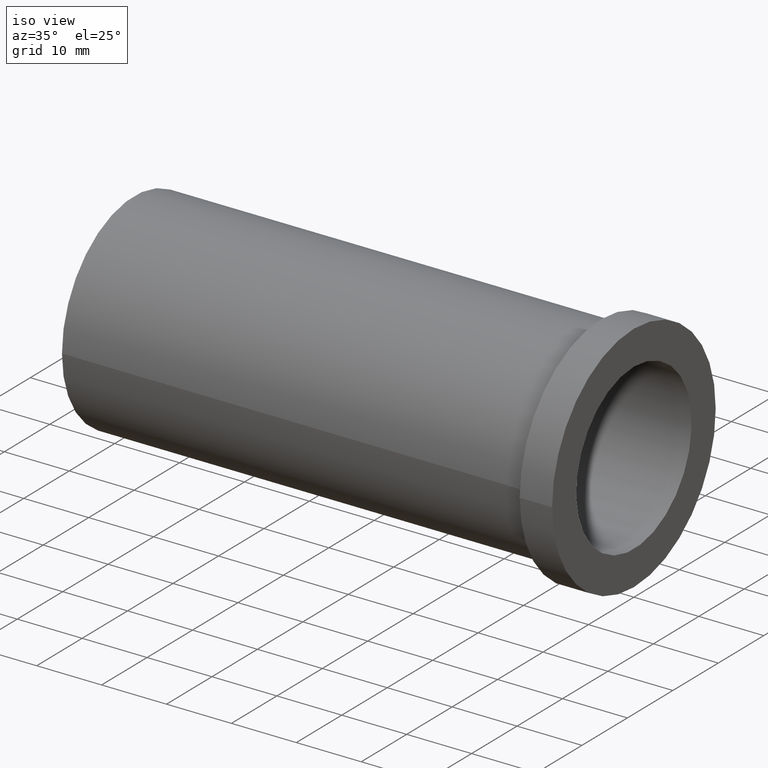
[diagram: clean part render]
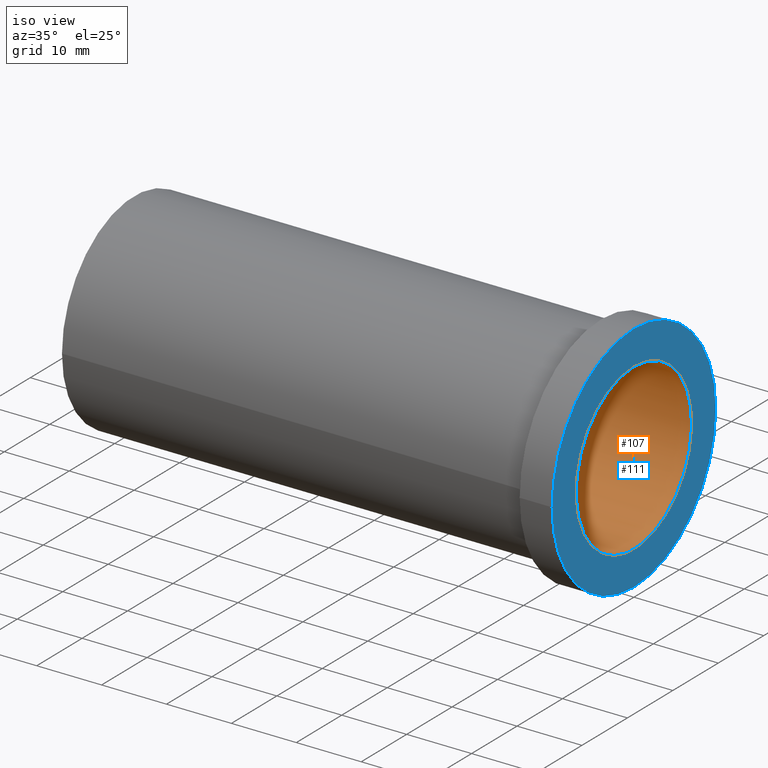
[diagram: same view with the hole feature highlighted: cylindrical wall and planar end face, labeled with their STEP entity ids]
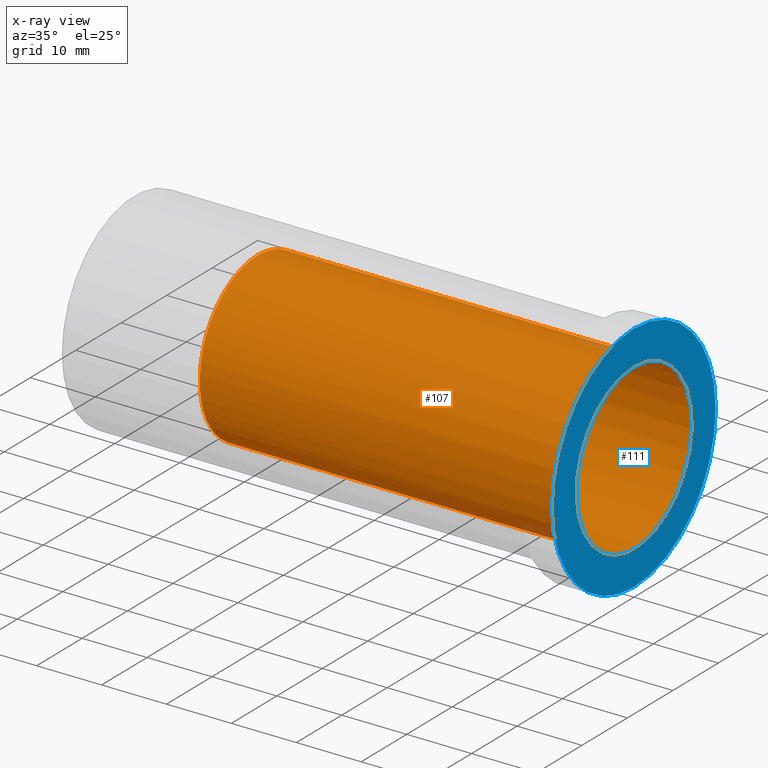
[diagram: x-ray of the same camera — body ghosted, the hole faces saturated]
A machine part, iso view. The highlighted faces form one hole feature of diameter 25.4 mm: the cylindrical wall (entity #107, orange) and its adjacent planar end face (entity #111, blue) — they share a circular edge in the B-rep.
The next image is the same camera in x-ray (body ghosted, the hole faces saturated) — the bore reads through the body.
Wall:
#23=FACE_OUTER_BOUND('',#31,.T.);
#31=EDGE_LOOP('',(#79,#80,#81,#82));
#43=LINE('',#197,#47);
#47=VECTOR('',#160,12.7);
#51=CIRCLE('',#139,12.7);
#52=CIRCLE('',#140,12.7);
#59=VERTEX_POINT('',#194);
#60=VERTEX_POINT('',#196);
#67=EDGE_CURVE('',#59,#59,#51,.T.);
#68=EDGE_CURVE('',#59,#60,#43,.T.);
#69=EDGE_CURVE('',#60,#60,#52,.T.);
#79=ORIENTED_EDGE('',*,*,#67,.F.);
#80=ORIENTED_EDGE('',*,*,#68,.T.);
#81=ORIENTED_EDGE('',*,*,#69,.F.);
#82=ORIENTED_EDGE('',*,*,#68,.F.);
#103=CYLINDRICAL_SURFACE('',#138,12.7);
#107=ADVANCED_FACE('',(#23),#103,.F.);
#138=AXIS2_PLACEMENT_3D('',#193,#156,#157);
#139=AXIS2_PLACEMENT_3D('',#195,#158,#159);
#140=AXIS2_PLACEMENT_3D('',#198,#161,#162);
#156=DIRECTION('center_axis',(1.,0.,0.));
#157=DIRECTION('ref_axis',(0.,0.,-1.));
#158=DIRECTION('center_axis',(-1.,0.,0.));
#159=DIRECTION('ref_axis',(0.,0.,-1.));
#160=DIRECTION('',(-1.,0.,0.));
#161=DIRECTION('center_axis',(1.,0.,0.));
#162=DIRECTION('ref_axis',(0.,0.,-1.));
#193=CARTESIAN_POINT('Origin',(-29.,0.,0.));
#194=CARTESIAN_POINT('',(0.,-1.55530143491714E-15,12.7));
#195=CARTESIAN_POINT('Origin',(0.,0.,0.));
#196=CARTESIAN_POINT('',(-58.,-1.55530143491714E-15,12.7));
#197=CARTESIAN_POINT('',(-29.,-1.55530143491714E-15,12.7));
#198=CARTESIAN_POINT('Origin',(-58.,0.,0.));
End face:
#16=FACE_BOUND('',#37,.T.);
#20=PLANE('',#148);
#27=FACE_OUTER_BOUND('',#36,.T.);
#36=EDGE_LOOP('',(#93));
#37=EDGE_LOOP('',(#94));
#51=CIRCLE('',#139,12.7);
#55=CIRCLE('',#146,18.);
#59=VERTEX_POINT('',#194);
#63=VERTEX_POINT('',#207);
#67=EDGE_CURVE('',#59,#59,#51,.T.);
#73=EDGE_CURVE('',#63,#63,#55,.T.);
#93=ORIENTED_EDGE('',*,*,#73,.T.);
#94=ORIENTED_EDGE('',*,*,#67,.T.);
#111=ADVANCED_FACE('',(#27,#16),#20,.T.);
#139=AXIS2_PLACEMENT_3D('',#195,#158,#159);
#146=AXIS2_PLACEMENT_3D('',#208,#174,#175);
#148=AXIS2_PLACEMENT_3D('',#212,#179,#180);
#158=DIRECTION('center_axis',(-1.,0.,0.));
#159=DIRECTION('ref_axis',(0.,0.,-1.));
#174=DIRECTION('center_axis',(1.,0.,0.));
#175=DIRECTION('ref_axis',(0.,0.,-1.));
#179=DIRECTION('center_axis',(1.,0.,0.));
#180=DIRECTION('ref_axis',(0.,0.,-1.));
#194=CARTESIAN_POINT('',(0.,-1.55530143491714E-15,12.7));
#195=CARTESIAN_POINT('Origin',(0.,0.,0.));
#207=CARTESIAN_POINT('',(5.55111512312578E-15,-18.,-2.20436423846524E-15));
#208=CARTESIAN_POINT('Origin',(5.55111512312578E-15,0.,0.));
#212=CARTESIAN_POINT('Origin',(1.24504562061398E-31,2.26081779560032E-14,
0.));